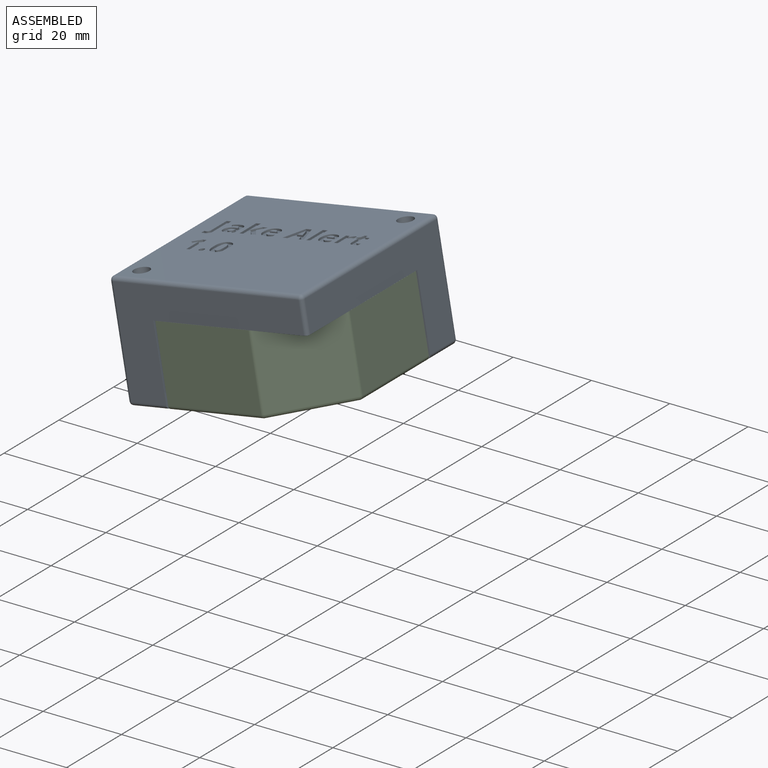
[diagram: assembled view]
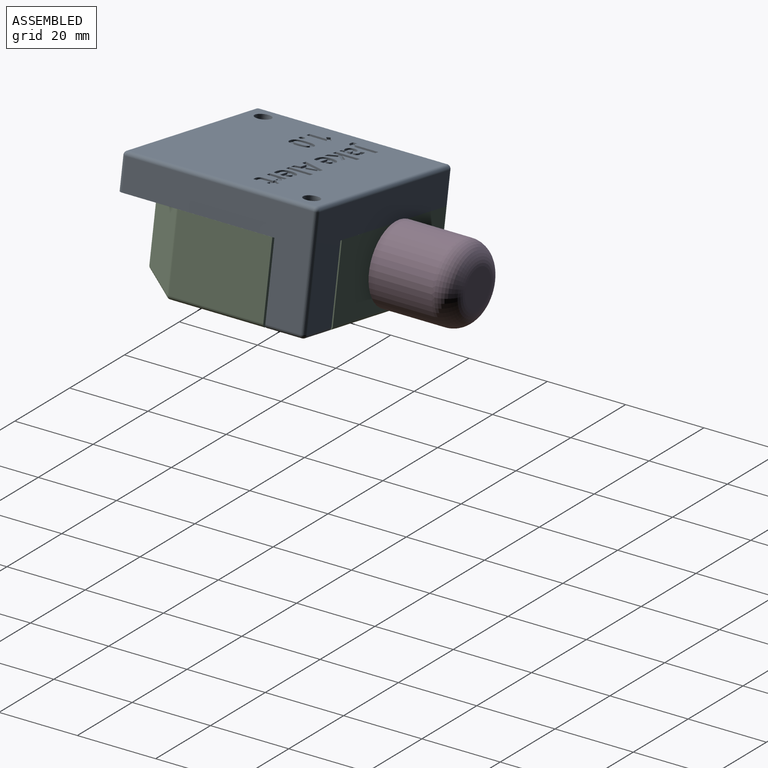
[diagram: assembled view, second angle]
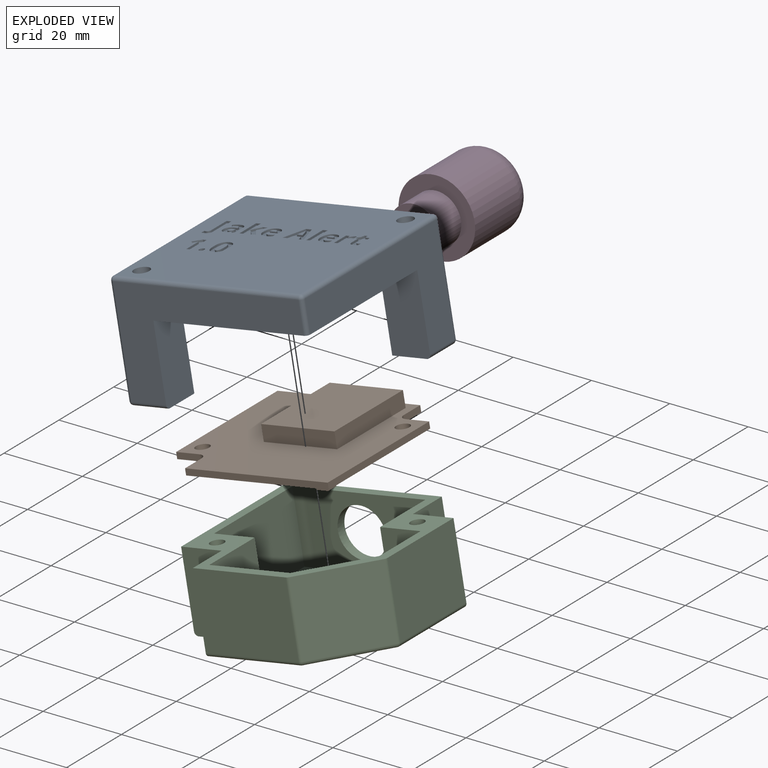
[diagram: exploded view]
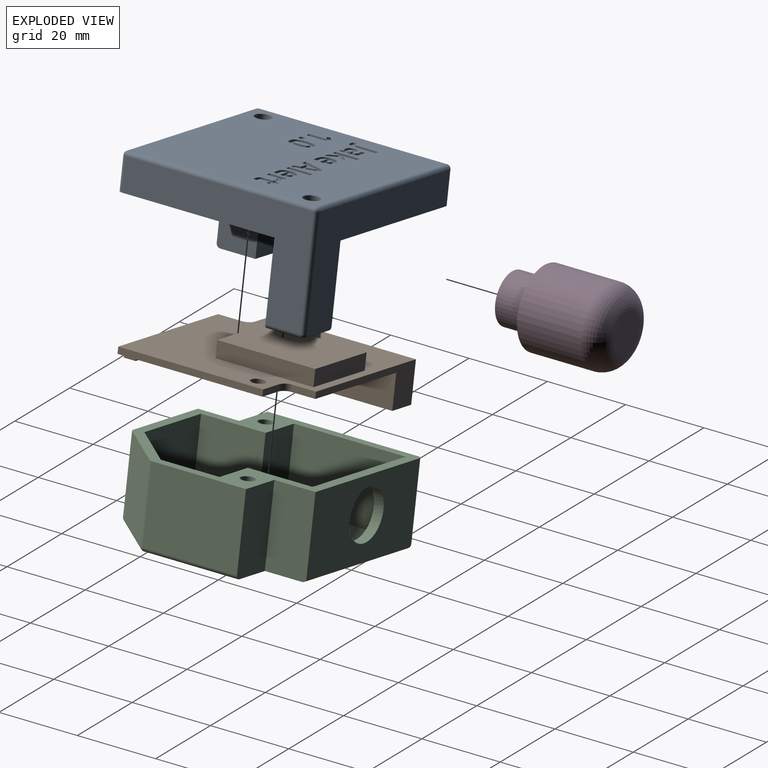
[diagram: exploded view, second angle]
ASSEMBLY  parts=4 mates=4
PART A: 239 faces, bbox 50x50x29 mm
  f0: plane 37.5x2mm, normal (-1,0,0), area 75mm2, adj f1,f196,f212,f217
  f1: plane 40x40mm, normal (0,0,-1), area 193.5mm2, adj f0,f4,f7,f196,f213,f217,f226
  f2: plane 37.5x2mm, normal (1,0,0), area 75mm2, adj f197,f198,f212,f214
  f3: plane 48x48mm, normal (0,0,1), area 2147.6mm2, adj f8,f9,f10,f11,f12,f13,f14,f15
  f4: plane 48x27mm, normal (1,0,0), area 555mm2, adj f1,f217,f226,f232,f235,f238
  f5: plane 48x27mm, normal (0,1,0), area 555mm2, adj f198,f216,f229,f233,f235,f236
  f6: plane 48x27mm, normal (-1,0,0), area 555mm2, adj f198,f214,f222,f224,f228,f229
  f7: plane 48x27mm, normal (0,-1,0), area 555mm2, adj f1,f213,f221,f224,f226,f227
  f8: extruded ~1.36x0.53mm, area 0.8mm2, adj f3,f9,f17,f18
  f9: extruded ~1.53x0.5mm, area 0.8mm2, adj f3,f8,f10,f18
  f10: plane 5.36x0.5mm, normal (-1,0,0), area 2.7mm2, adj f3,f9,f11,f18
  f11: plane 1.21x0.5mm, normal (0,-1,0), area 0.6mm2, adj f3,f10,f12,f18
  f12: plane 5.37x0.5mm, normal (1,0,0), area 2.7mm2, adj f3,f11,f13,f18
  f13: extruded ~0.78x0.5mm, area 0.4mm2, adj f3,f12,f14,f18
  f14: extruded ~0.57x0.5mm, area 0.3mm2, adj f3,f13,f15,f18
  f15: extruded ~0.57x0.5mm, area 0.3mm2, adj f3,f14,f16,f18
  f16: plane 1.01x0.5mm, normal (1,0,0), area 0.5mm2, adj f3,f15,f17,f18
  f17: extruded ~0.72x0.5mm, area 0.4mm2, adj f3,f8,f16,f18
  f18: plane 7.41x2.53mm, normal (0,0,1), area 9.8mm2, adj f8,f9,f10,f11,f12,f13,f14,f15
  f19: extruded ~2.2x0.51mm, area 1.1mm2, adj f3,f20,f34,f35
  f20: extruded ~1.5x0.75mm, area 0.9mm2, adj f3,f19,f21,f35
  f21: extruded ~1.51x0.72mm, area 0.9mm2, adj f3,f20,f22,f35
  f22: extruded ~2.24x0.5mm, area 1.2mm2, adj f3,f21,f23,f35
  f23: extruded ~2.2x0.5mm, area 1.1mm2, adj f3,f22,f24,f35
  f24: extruded ~1.49x0.74mm, area 0.9mm2, adj f3,f23,f25,f35
  f25: extruded ~1.51x0.72mm, area 0.9mm2, adj f3,f24,f34,f35
  f26: extruded ~1.51x0.5mm, area 0.8mm2, adj f27,f33,f35,f36
  f27: extruded ~0.61x0.5mm, area 0.4mm2, adj f26,f28,f35,f36
  f28: extruded ~0.61x0.5mm, area 0.4mm2, adj f27,f29,f35,f36
  f29: extruded ~1.51x0.5mm, area 0.8mm2, adj f28,f30,f35,f36
  f30: extruded ~1.5x0.5mm, area 0.8mm2, adj f29,f31,f35,f36
  f31: extruded ~0.61x0.5mm, area 0.4mm2, adj f30,f32,f35,f36
  f32: extruded ~0.61x0.5mm, area 0.4mm2, adj f31,f33,f35,f36
  f33: extruded ~1.51x0.5mm, area 0.8mm2, adj f26,f32,f35,f36
  f34: extruded ~2.22x0.5mm, area 1.2mm2, adj f3,f19,f25,f35
  f35: plane 5.9x4mm, normal (0,0,1), area 14.4mm2, adj f19,f20,f21,f22,f23,f24,f25,f26
  f36: plane 3.94x1.59mm, normal (0,0,1), area 5.3mm2, adj f26,f27,f28,f29,f30,f31,f32,f33
  f37: extruded ~0.6x0.5mm, area 0.3mm2, adj f38,f56,f57,f194
  f38: extruded ~0.68x0.5mm, area 0.4mm2, adj f37,f39,f57,f194
  f39: plane 1.68x0.5mm, normal (0,-1,0), area 0.8mm2, adj f38,f40,f57,f194
  f40: extruded ~0.68x0.5mm, area 0.4mm2, adj f39,f56,f57,f194
  f41: extruded ~0.87x0.5mm, area 0.4mm2, adj f3,f42,f55,f57
  f42: extruded ~0.67x0.5mm, area 0.4mm2, adj f3,f41,f43,f57
  f43: plane 0.93x0.5mm, normal (-1,0,0), area 0.5mm2, adj f3,f42,f44,f57
  f44: extruded ~0.74x0.5mm, area 0.4mm2, adj f3,f43,f45,f57
  f45: extruded ~0.75x0.5mm, area 0.4mm2, adj f3,f44,f46,f57
  f46: extruded ~0.79x0.5mm, area 0.4mm2, adj f3,f45,f47,f57
  f47: extruded ~0.79x0.5mm, area 0.4mm2, adj f3,f46,f48,f57
  f48: plane 2.82x0.5mm, normal (0,1,0), area 1.4mm2, adj f3,f47,f49,f57
  f49: plane 0.58x0.5mm, normal (-1,0,0), area 0.3mm2, adj f3,f48,f50,f57
  f50: extruded ~1.46x0.52mm, area 0.8mm2, adj f3,f49,f51,f57
  f51: extruded ~1.44x0.53mm, area 0.8mm2, adj f3,f50,f52,f57
  f52: extruded ~1.52x0.6mm, area 0.8mm2, adj f3,f51,f53,f57
  f53: extruded ~1.7x0.55mm, area 0.9mm2, adj f3,f52,f54,f57
  f54: extruded ~1.65x0.6mm, area 0.9mm2, adj f3,f53,f55,f57
  f55: extruded ~1.65x0.58mm, area 0.9mm2, adj f3,f41,f54,f57
  f56: extruded ~0.6x0.5mm, area 0.3mm2, adj f37,f40,f57,f194
  f57: plane 4.54x4.03mm, normal (0,0,1), area 11.6mm2, adj f37,f38,f39,f40,f41,f42,f43,f44
  f58: plane 1.31x0.5mm, normal (0,1,0), area 0.7mm2, adj f3,f59,f69,f70
  f59: plane 5.75x2.03mm, normal (-0.94,-0.33,0), area 3mm2, adj f3,f58,f60,f70
  f60: plane 1.48x0.5mm, normal (0,-1,0), area 0.7mm2, adj f3,f59,f61,f70
  f61: plane 5.75x2.02mm, normal (0.94,-0.33,0), area 3mm2, adj f3,f60,f62,f70
  f62: plane 1.31x0.5mm, normal (0,1,0), area 0.7mm2, adj f3,f61,f63,f70
  f63: plane 1.36x0.5mm, normal (-0.96,0.29,0), area 0.7mm2, adj f3,f62,f64,f70
  f64: plane 2.09x0.5mm, normal (0,1,0), area 1mm2, adj f3,f63,f69,f70
  f65: plane 1.49x0.5mm, normal (0,-1,0), area 0.7mm2, adj f66,f68,f70,f71
  f66: extruded ~2.48x0.74mm, area 1.3mm2, adj f65,f67,f70,f71
  f67: extruded ~0.5x0.38mm, area 0.2mm2, adj f66,f68,f70,f71
  f68: extruded ~2.1x0.65mm, area 1.1mm2, adj f65,f67,f70,f71
  f69: plane 1.36x0.5mm, normal (0.96,0.29,0), area 0.7mm2, adj f3,f58,f64,f70
  f70: plane 5.75x5.53mm, normal (0,0,1), area 15mm2, adj f58,f59,f60,f61,f62,f63,f64,f65
  f71: plane 2.48x1.49mm, normal (0,0,1), area 1.8mm2, adj f65,f66,f67,f68
  f72: plane 0.5x0.02mm, normal (0,-1,0), area 0mm2, adj f3,f73,f86,f87
  f73: plane 1x0.5mm, normal (-1,0.06,0), area 0.5mm2, adj f3,f72,f74,f87
  f74: plane 2.72x0.5mm, normal (-1,0,0), area 1.4mm2, adj f3,f73,f75,f87
  f75: plane 1.19x0.5mm, normal (0,-1,0), area 0.6mm2, adj f3,f74,f76,f87
  f76: plane 6.09x0.5mm, normal (1,0,0), area 3mm2, adj f3,f75,f77,f87
  f77: plane 1.19x0.5mm, normal (0,1,0), area 0.6mm2, adj f3,f76,f78,f87
  f78: plane 1.36x0.5mm, normal (-1,0,0), area 0.7mm2, adj f3,f77,f79,f87
  f79: plane 0.51x0.5mm, normal (-0.62,0.78,0), area 0.3mm2, adj f3,f78,f80,f87
  f80: plane 1.77x1.26mm, normal (0.82,0.58,0), area 1.1mm2, adj f3,f79,f81,f87
  f81: plane 1.38x0.5mm, normal (0,1,0), area 0.7mm2, adj f3,f80,f82,f87
  f82: plane 2.48x1.85mm, normal (-0.8,-0.6,0), area 1.5mm2, adj f3,f81,f83,f87
  f83: plane 1.9x1.74mm, normal (-0.74,0.68,0), area 1.3mm2, adj f3,f82,f84,f87
  f84: plane 1.35x0.5mm, normal (0,-1,0), area 0.7mm2, adj f3,f83,f85,f87
  f85: plane 1.33x1.23mm, normal (0.74,-0.68,0), area 0.9mm2, adj f3,f84,f86,f87
  f86: plane 0.67x0.52mm, normal (0.79,-0.62,0), area 0.4mm2, adj f3,f72,f85,f87
  f87: plane 6.09x4.35mm, normal (0,0,1), area 13.4mm2, adj f72,f73,f74,f75,f76,f77,f78,f79
  f88: plane 6.09x0.5mm, normal (-1,0,0), area 3mm2, adj f3,f89,f91,f92
  f89: plane 1.19x0.5mm, normal (0,-1,0), area 0.6mm2, adj f3,f88,f90,f92
  f90: plane 6.09x0.5mm, normal (1,0,0), area 3mm2, adj f3,f89,f91,f92
  f91: plane 1.19x0.5mm, normal (0,1,0), area 0.6mm2, adj f3,f88,f90,f92
  f92: plane 6.09x1.19mm, normal (0,0,1), area 7.3mm2, adj f88,f89,f90,f91
  f93: extruded ~0.75x0.5mm, area 0.4mm2, adj f3,f94,f105,f106
  f94: extruded ~0.59x0.55mm, area 0.4mm2, adj f3,f93,f95,f106
  f95: plane 0.5x0.06mm, normal (0,-1,0), area 0mm2, adj f3,f94,f96,f106
  f96: plane 0.74x0.5mm, normal (-0.97,-0.23,0), area 0.4mm2, adj f3,f95,f97,f106
  f97: plane 0.91x0.5mm, normal (0,-1,0), area 0.5mm2, adj f3,f96,f98,f106
  f98: plane 4.38x0.5mm, normal (1,0,0), area 2.2mm2, adj f3,f97,f99,f106
  f99: plane 1.19x0.5mm, normal (0,1,0), area 0.6mm2, adj f3,f98,f100,f106
  f100: plane 2.23x0.5mm, normal (-1,0,0), area 1.1mm2, adj f3,f99,f101,f106
  f101: extruded ~0.82x0.5mm, area 0.5mm2, adj f3,f100,f102,f106
  f102: extruded ~0.89x0.5mm, area 0.5mm2, adj f3,f101,f103,f106
  f103: extruded ~0.5x0.35mm, area 0.2mm2, adj f3,f102,f104,f106
  f104: plane 1.12x0.5mm, normal (-1,0.08,0), area 0.6mm2, adj f3,f103,f105,f106
  f105: extruded ~0.5x0.4mm, area 0.2mm2, adj f3,f93,f104,f106
  f106: plane 4.46x2.85mm, normal (0,0,1), area 6.9mm2, adj f93,f94,f95,f96,f97,f98,f99,f100
  f107: extruded ~0.5x0.38mm, area 0.2mm2, adj f3,f108,f124,f125
  f108: extruded ~0.5x0.38mm, area 0.2mm2, adj f3,f107,f109,f125
  f109: plane 2.11x0.5mm, normal (-1,0,0), area 1.1mm2, adj f3,f108,f110,f125
  f110: plane 1.23x0.5mm, normal (0,1,0), area 0.6mm2, adj f3,f109,f111,f125
  f111: plane 0.9x0.5mm, normal (-1,0,0), area 0.4mm2, adj f3,f110,f112,f125
  f112: plane 1.23x0.5mm, normal (0,-1,0), area 0.6mm2, adj f3,f111,f113,f125
  f113: plane 0.93x0.5mm, normal (-1,0,0), area 0.5mm2, adj f3,f112,f114,f125
  f114: plane 0.76x0.5mm, normal (0,-1,0), area 0.4mm2, adj f3,f113,f115,f125
  f115: plane 0.93x0.5mm, normal (0.94,-0.35,0), area 0.5mm2, adj f3,f114,f116,f125
  f116: plane 0.66x0.5mm, normal (0.52,-0.85,0), area 0.4mm2, adj f3,f115,f117,f125
  f117: plane 0.51x0.5mm, normal (1,0,0), area 0.3mm2, adj f3,f116,f118,f125
  f118: plane 0.57x0.5mm, normal (0,1,0), area 0.3mm2, adj f3,f117,f119,f125
  f119: plane 2.11x0.5mm, normal (1,0,0), area 1.1mm2, adj f3,f118,f120,f125
  f120: extruded ~1.09x0.5mm, area 0.6mm2, adj f3,f119,f121,f125
  f121: extruded ~1.04x0.5mm, area 0.6mm2, adj f3,f120,f122,f125
  f122: extruded ~1.1x0.5mm, area 0.6mm2, adj f3,f121,f123,f125
  f123: plane 0.89x0.5mm, normal (-1,0,0), area 0.4mm2, adj f3,f122,f124,f125
  f124: extruded ~0.75x0.5mm, area 0.4mm2, adj f3,f107,f123,f125
  f125: plane 5.39x3.04mm, normal (0,0,1), area 8.6mm2, adj f107,f108,f109,f110,f111,f112,f113,f114
  f126: plane 5.73x0.5mm, normal (-1,0,0), area 2.9mm2, adj f3,f127,f135,f136
  f127: plane 1x0.5mm, normal (0,-1,0), area 0.5mm2, adj f3,f126,f128,f136
  f128: plane 1.85x1.47mm, normal (0.62,-0.78,0), area 1.2mm2, adj f3,f127,f129,f136
  f129: plane 0.73x0.58mm, normal (0.78,0.63,0), area 0.5mm2, adj f3,f128,f130,f136
  f130: plane 0.66x0.53mm, normal (-0.63,0.78,0), area 0.4mm2, adj f3,f129,f131,f136
  f131: extruded ~0.5x0.42mm, area 0.3mm2, adj f3,f130,f132,f136
  f132: plane 0.6x0.5mm, normal (1,-0.03,0), area 0.3mm2, adj f3,f131,f133,f136
  f133: plane 0.54x0.5mm, normal (1,-0.02,0), area 0.3mm2, adj f3,f132,f134,f136
  f134: plane 3.31x0.5mm, normal (1,0,0), area 1.7mm2, adj f3,f133,f135,f136
  f135: plane 1.21x0.5mm, normal (0,1,0), area 0.6mm2, adj f3,f126,f134,f136
  f136: plane 5.73x2.84mm, normal (0,0,1), area 8.5mm2, adj f126,f127,f128,f129,f130,f131,f132,f133
  f137: extruded ~0.5x0.49mm, area 0.3mm2, adj f3,f138,f144,f145
  f138: extruded ~0.51x0.5mm, area 0.3mm2, adj f3,f137,f139,f145
  f139: extruded ~0.5x0.5mm, area 0.3mm2, adj f3,f138,f140,f145
  f140: extruded ~0.5x0.49mm, area 0.3mm2, adj f3,f139,f141,f145
  f141: extruded ~0.5x0.49mm, area 0.3mm2, adj f3,f140,f142,f145
  f142: extruded ~0.5x0.5mm, area 0.3mm2, adj f3,f141,f143,f145
  f143: extruded ~0.51x0.5mm, area 0.3mm2, adj f3,f142,f144,f145
  f144: extruded ~0.5x0.5mm, area 0.3mm2, adj f3,f137,f143,f145
  f145: plane 1.37x1.33mm, normal (0,0,1), area 1.5mm2, adj f137,f138,f139,f140,f141,f142,f143,f144
  f146: plane 0.83x0.5mm, normal (0,1,0), area 0.4mm2, adj f3,f147,f170,f171
  f147: plane 2.92x0.5mm, normal (-1,0,0), area 1.5mm2, adj f3,f146,f148,f171
  f148: extruded ~1.17x0.5mm, area 0.7mm2, adj f3,f147,f149,f171
  f149: extruded ~1.35x0.5mm, area 0.7mm2, adj f3,f148,f150,f171
  f150: extruded ~1.68x0.5mm, area 0.9mm2, adj f3,f149,f151,f171
  f151: plane 0.81x0.5mm, normal (0.9,0.44,0), area 0.4mm2, adj f3,f150,f152,f171
  f152: extruded ~1.23x0.5mm, area 0.6mm2, adj f3,f151,f153,f171
  f153: extruded ~0.68x0.67mm, area 0.5mm2, adj f3,f152,f154,f171
  f154: plane 0.5x0.19mm, normal (1,0,0), area 0.1mm2, adj f3,f153,f155,f171
  f155: plane 0.76x0.5mm, normal (0.03,-1,0), area 0.4mm2, adj f3,f154,f156,f171
  f156: extruded ~1.47x0.5mm, area 0.8mm2, adj f3,f155,f157,f171
  f157: extruded ~1.03x0.5mm, area 0.6mm2, adj f3,f156,f158,f171
  f158: extruded ~1.03x0.5mm, area 0.6mm2, adj f3,f157,f159,f171
  f159: extruded ~0.99x0.5mm, area 0.5mm2, adj f3,f158,f160,f171
  f160: extruded ~0.83x0.5mm, area 0.4mm2, adj f3,f159,f161,f171
  f161: extruded ~0.62x0.53mm, area 0.4mm2, adj f3,f160,f162,f171
  f162: plane 0.5x0.03mm, normal (0,1,0), area 0mm2, adj f3,f161,f170,f171
  f163: plane 0.5x0.36mm, normal (1,0,0), area 0.2mm2, adj f164,f169,f171,f172
  f164: extruded ~0.63x0.5mm, area 0.4mm2, adj f163,f165,f171,f172
  f165: extruded ~0.67x0.5mm, area 0.4mm2, adj f164,f166,f171,f172
  f166: extruded ~0.58x0.51mm, area 0.4mm2, adj f165,f167,f171,f172
  f167: extruded ~0.52x0.5mm, area 0.3mm2, adj f166,f168,f171,f172
  f168: extruded ~0.78x0.5mm, area 0.4mm2, adj f167,f169,f171,f172
  f169: plane 0.5x0.46mm, normal (-0.04,1,0), area 0.2mm2, adj f163,f168,f171,f172
  f170: plane 0.6x0.5mm, normal (0.93,0.36,0), area 0.3mm2, adj f3,f146,f162,f171
  f171: plane 4.55x3.9mm, normal (0,0,1), area 11.7mm2, adj f146,f147,f148,f149,f150,f151,f152,f153
  f172: plane 1.49x1.23mm, normal (0,0,1), area 1.5mm2, adj f163,f164,f165,f166,f167,f168,f169
  f173: extruded ~0.6x0.5mm, area 0.3mm2, adj f174,f192,f193,f195
  f174: extruded ~0.68x0.5mm, area 0.4mm2, adj f173,f175,f193,f195
  f175: plane 1.68x0.5mm, normal (0,-1,0), area 0.8mm2, adj f174,f176,f193,f195
  f176: extruded ~0.68x0.5mm, area 0.4mm2, adj f175,f192,f193,f195
  f177: extruded ~0.87x0.5mm, area 0.4mm2, adj f3,f178,f191,f193
  f178: extruded ~0.67x0.5mm, area 0.4mm2, adj f3,f177,f179,f193
  f179: plane 0.93x0.5mm, normal (-1,0,0), area 0.5mm2, adj f3,f178,f180,f193
  f180: extruded ~0.74x0.5mm, area 0.4mm2, adj f3,f179,f181,f193
  f181: extruded ~0.75x0.5mm, area 0.4mm2, adj f3,f180,f182,f193
  f182: extruded ~0.79x0.5mm, area 0.4mm2, adj f3,f181,f183,f193
  f183: extruded ~0.79x0.5mm, area 0.4mm2, adj f3,f182,f184,f193
  f184: plane 2.82x0.5mm, normal (0,1,0), area 1.4mm2, adj f3,f183,f185,f193
  f185: plane 0.58x0.5mm, normal (-1,0,0), area 0.3mm2, adj f3,f184,f186,f193
  f186: extruded ~1.46x0.52mm, area 0.8mm2, adj f3,f185,f187,f193
  f187: extruded ~1.44x0.53mm, area 0.8mm2, adj f3,f186,f188,f193
  f188: extruded ~1.52x0.6mm, area 0.8mm2, adj f3,f187,f189,f193
  f189: extruded ~1.7x0.55mm, area 0.9mm2, adj f3,f188,f190,f193
  f190: extruded ~1.65x0.6mm, area 0.9mm2, adj f3,f189,f191,f193
  f191: extruded ~1.65x0.58mm, area 0.9mm2, adj f3,f177,f190,f193
  f192: extruded ~0.6x0.5mm, area 0.3mm2, adj f173,f176,f193,f195
  f193: plane 4.54x4.03mm, normal (0,0,1), area 11.6mm2, adj f173,f174,f175,f176,f177,f178,f179,f180
  f194: plane 1.68x0.92mm, normal (0,0,1), area 1.2mm2, adj f37,f38,f39,f40,f56
  f195: plane 1.68x0.92mm, normal (0,0,1), area 1.2mm2, adj f173,f174,f175,f176,f192
  f196: plane 37.5x2mm, normal (0,1,0), area 75mm2, adj f0,f1,f212,f213
  f197: plane 37.5x2mm, normal (0,-1,0), area 75mm2, adj f2,f198,f212,f216
  f198: plane 40x40mm, normal (0,0,-1), area 193.5mm2, adj f2,f5,f6,f197,f214,f216,f229
  f199: plane 1x1mm, normal (0,0,-1), area 0.8mm2, adj f202
  f200: plane 1x1mm, normal (0,0,-1), area 0.8mm2, adj f203
  f201: plane 42x42mm, normal (0,0,-1), area 1524mm2, adj f204,f205,f206,f207,f208,f209,f210,f211
  f202: cylinder r=0.5mm len=5mm, axis (0,0,1), area 15.7mm2, adj f199,f212
  f203: cylinder r=0.5mm len=5mm, axis (0,0,1), area 15.7mm2, adj f200,f212
  f204: plane 16x5mm, normal (1,0,0), area 80mm2, adj f201,f205,f211,f212
  f205: plane 7.5x5mm, normal (0,1,0), area 37.5mm2, adj f201,f204,f206,f212
  f206: plane 26x5mm, normal (1,0,0), area 130mm2, adj f201,f205,f207,f212
  f207: plane 34.5x5mm, normal (0,-1,0), area 172.5mm2, adj f201,f206,f208,f212
  f208: plane 16x5mm, normal (-1,0,0), area 80mm2, adj f201,f207,f209,f212
  f209: plane 7.5x5mm, normal (0,-1,0), area 37.5mm2, adj f201,f208,f210,f212
  f210: plane 26x5mm, normal (-1,0,0), area 130mm2, adj f201,f209,f211,f212
  f211: plane 34.5x5mm, normal (0,1,0), area 172.5mm2, adj f201,f204,f210,f212
  f212: plane 45x45mm, normal (0,0,-1), area 386.9mm2, adj f0,f2,f196,f197,f202,f203,f204,f205
  f213: plane 22x10mm, normal (1,0,0), area 214.8mm2, adj f1,f7,f196,f212,f214,f215,f221
  f214: plane 22x10mm, normal (0,1,0), area 214.8mm2, adj f2,f6,f198,f212,f213,f215,f222
  f215: plane 9x9mm, normal (0,0,-1), area 68.4mm2, adj f213,f214,f219,f221,f222
  f216: plane 22x10mm, normal (-1,0,0), area 214.8mm2, adj f5,f197,f198,f212,f217,f218,f236
  f217: plane 22x10mm, normal (0,-1,0), area 214.8mm2, adj f0,f1,f4,f212,f216,f218,f238
  f218: plane 9x9mm, normal (0,0,-1), area 68.4mm2, adj f216,f217,f220,f236,f238
  f219: cylinder r=2mm len=29mm, axis (0,0,1), area 364.4mm2, adj f3,f215
  f220: cylinder r=2mm len=29mm, axis (0,0,1), area 364.4mm2, adj f3,f218
  f221: cylinder r=1mm len=9mm, axis (-1,0,0), area 14.1mm2, adj f7,f213,f215,f223
  f222: cylinder r=1mm len=9mm, axis (0,1,0), area 14.1mm2, adj f6,f214,f215,f223
  f223: sphere r=1mm, area 1.6mm2, adj f221,f222,f224
  f224: cylinder r=1mm len=27mm, axis (0,0,-1), area 42.4mm2, adj f6,f7,f223,f225
  f225: sphere r=1mm, area 1.6mm2, adj f224,f227,f228
  f226: cylinder r=1mm len=8mm, axis (0,0,-1), area 12.6mm2, adj f1,f4,f7,f230
  f227: cylinder r=1mm len=48mm, axis (-1,0,0), area 75.4mm2, adj f3,f7,f225,f230
  f228: cylinder r=1mm len=48mm, axis (0,1,0), area 75.4mm2, adj f3,f6,f225,f231
  f229: cylinder r=1mm len=8mm, axis (0,0,1), area 12.6mm2, adj f5,f6,f198,f231
  f230: sphere r=1mm, area 1.6mm2, adj f226,f227,f232
  f231: sphere r=1mm, area 1.6mm2, adj f228,f229,f233
  f232: cylinder r=1mm len=48mm, axis (0,-1,0), area 75.4mm2, adj f3,f4,f230,f234
  f233: cylinder r=1mm len=48mm, axis (1,0,0), area 75.4mm2, adj f3,f5,f231,f234
  f234: sphere r=1mm, area 1.6mm2, adj f232,f233,f235
  f235: cylinder r=1mm len=27mm, axis (0,0,1), area 42.4mm2, adj f4,f5,f234,f237
  f236: cylinder r=1mm len=9mm, axis (1,0,0), area 14.1mm2, adj f5,f216,f218,f237
  f237: sphere r=1mm, area 1.6mm2, adj f235,f236,f238
  f238: cylinder r=1mm len=9mm, axis (0,-1,0), area 14.1mm2, adj f4,f217,f218,f237
PART B: 29 faces, bbox 45x45x14 mm
  f0: plane 45x45mm, normal (0,0,1), area 1715mm2, adj f2,f3,f4,f5,f6,f7,f8,f9
  f1: plane 45x45mm, normal (0,0,-1), area 1404.5mm2, adj f2,f3,f4,f5,f6,f7,f8,f9
  f2: plane 6x1.6mm, normal (0,-1,0), area 9.6mm2, adj f0,f1,f3,f11
  f3: plane 37x10mm, normal (1,0,0), area 244.8mm2, adj f0,f1,f2,f4,f18,f19
  f4: plane 37x10mm, normal (0,1,0), area 118mm2, adj f0,f1,f3,f5,f17,f19
  f5: plane 6x1.6mm, normal (-1,0,0), area 9.6mm2, adj f0,f1,f4,f6
  f6: cylinder r=2mm len=2mm, axis (0,0,-1), area 5mm2, adj f0,f1,f5,f7
  f7: plane 6x1.6mm, normal (0,1,0), area 9.6mm2, adj f0,f1,f6,f8
  f8: plane 37x1.6mm, normal (-1,0,0), area 59.2mm2, adj f0,f1,f7,f9
  f9: plane 37x1.6mm, normal (0,-1,0), area 59.2mm2, adj f0,f1,f8,f10
  f10: plane 6x1.6mm, normal (1,0,0), area 9.6mm2, adj f0,f1,f9,f11
  f11: cylinder r=2mm len=2mm, axis (0,0,-1), area 5mm2, adj f0,f1,f2,f10
  f12: plane 19x4mm, normal (0,-1,0), area 76mm2, adj f1,f13,f15,f16
  f13: plane 25x4mm, normal (1,0,0), area 100mm2, adj f1,f12,f14,f16
  f14: plane 19x4mm, normal (0,1,0), area 76mm2, adj f1,f13,f15,f16
  f15: plane 25x4mm, normal (-1,0,0), area 100mm2, adj f1,f12,f14,f16
  f16: plane 25x19mm, normal (0,0,-1), area 475mm2, adj f12,f13,f14,f15
  f17: plane 22.1x8.4mm, normal (-1,0,0), area 185.6mm2, adj f0,f4,f18,f19
  f18: plane 8.4x7mm, normal (0,-1,0), area 58.8mm2, adj f0,f3,f17,f19
  f19: plane 22.1x7mm, normal (0,0,1), area 154.7mm2, adj f3,f4,f17,f18
  f20: plane 3x0.75mm, normal (-1,0,0), area 2.2mm2, adj f0,f21,f23,f24
  f21: plane 3x0.75mm, normal (0,-1,0), area 2.2mm2, adj f0,f20,f22,f24
  f22: plane 3x0.75mm, normal (1,0,0), area 2.2mm2, adj f0,f21,f23,f24
  f23: plane 3x0.75mm, normal (0,1,0), area 2.2mm2, adj f0,f20,f22,f24
  f24: plane 3x3mm, normal (0,0,1), area 9mm2, adj f20,f21,f22,f23
  f25: cylinder r=0.5mm len=1mm, axis (0,0,-1), area 2.4mm2, adj f0,f26
  f26: plane 1x1mm, normal (0,0,1), area 0.8mm2, adj f25
  f27: cylinder r=1.75mm len=3.5mm, axis (0,0,-1), area 17.6mm2, adj f0,f1
  f28: cylinder r=1.75mm len=3.5mm, axis (0,0,-1), area 17.6mm2, adj f0,f1
PART C: 39 faces, bbox 50x50x20 mm
  f0: plane 24.1x19mm, normal (0,-1,0), area 457.9mm2, adj f8,f19,f26,f28
  f1: plane 19x14.41mm, normal (0.71,-0.71,0), area 387.3mm2, adj f19,f22,f25,f28
  f2: plane 24.1x19mm, normal (1,0,0), area 457.9mm2, adj f3,f19,f22,f23
  f3: plane 20x10.5mm, normal (0,1,0), area 209.9mm2, adj f2,f4,f9,f19,f23
  f4: plane 20x10.5mm, normal (1,0,0), area 209.9mm2, adj f3,f5,f9,f19,f30
  f5: plane 38.52x19mm, normal (0,1,0), area 609.1mm2, adj f4,f19,f21,f30,f32
  f6: plane 38.52x19mm, normal (-1,0,0), area 731.8mm2, adj f7,f19,f29,f32
  f7: plane 20x10.5mm, normal (0,-1,0), area 209.9mm2, adj f6,f8,f9,f19,f29
  f8: plane 20x10.5mm, normal (-1,0,0), area 209.9mm2, adj f0,f7,f9,f19,f26
  f9: plane 48.02x48.02mm, normal (0,0,-1), area 1964.9mm2, adj f3,f4,f7,f8,f23,f25,f26,f29
  f10: plane 20.98x18mm, normal (0,1,0), area 377.7mm2, adj f11,f18,f19,f20
  f11: plane 18x16.5mm, normal (1,0,0), area 297.1mm2, adj f10,f12,f19,f20
  f12: plane 18x10.5mm, normal (0,1,0), area 189.1mm2, adj f11,f13,f19,f20
  f13: plane 28.52x18mm, normal (1,0,0), area 513.3mm2, adj f12,f14,f19,f20
  f14: plane 34.52x18mm, normal (0,-1,0), area 498.6mm2, adj f13,f15,f19,f20,f21
  f15: plane 18x16.5mm, normal (-1,0,0), area 297.1mm2, adj f14,f16,f19,f20
  f16: plane 18x10.5mm, normal (0,-1,0), area 189.1mm2, adj f15,f17,f19,f20
  f17: plane 18x14.98mm, normal (-1,0,0), area 269.7mm2, adj f16,f18,f19,f20
  f18: plane 18x13.54mm, normal (-0.71,0.71,0), area 344.6mm2, adj f10,f17,f19,f20
  f19: plane 50.02x50.02mm, normal (0,0,1), area 560.9mm2, adj f0,f1,f2,f3,f4,f5,f6,f7
  f20: plane 45.02x45.02mm, normal (0,0,1), area 1588.5mm2, adj f10,f11,f12,f13,f14,f15,f16,f17
  f21: cylinder r=6.25mm len=12.5mm, axis (0,1,0), area 98.2mm2, adj f5,f14
  f22: cylinder r=1mm len=19mm, axis (0,0,1), area 14.9mm2, adj f1,f2,f19,f24
  f23: cylinder r=1mm len=24.1mm, axis (0,1,0), area 37.9mm2, adj f2,f3,f9,f24
  f24: sphere r=1mm, area 0.8mm2, adj f22,f23,f25
  f25: cylinder r=1mm len=15.12mm, axis (0.71,0.71,0), area 32mm2, adj f1,f9,f24,f27
  f26: cylinder r=1mm len=24.1mm, axis (1,0,0), area 37.9mm2, adj f0,f8,f9,f27
  f27: sphere r=1mm, area 0.8mm2, adj f25,f26,f28
  f28: cylinder r=1mm len=19mm, axis (0,0,1), area 14.9mm2, adj f0,f1,f19,f27
  f29: cylinder r=1mm len=38.52mm, axis (0,-1,0), area 60.5mm2, adj f6,f7,f9,f31
  f30: cylinder r=1mm len=38.52mm, axis (-1,0,0), area 60.5mm2, adj f4,f5,f9,f31
  f31: sphere r=1mm, area 1.6mm2, adj f29,f30,f32
  f32: cylinder r=1mm len=19mm, axis (0,0,-1), area 29.8mm2, adj f5,f6,f19,f31
  f33: cylinder r=1.75mm len=3.5mm, axis (0,0,1), area 33mm2, adj f19,f37
  f34: cylinder r=1.75mm len=3.5mm, axis (0,0,1), area 33mm2, adj f19,f35
  f35: plane 6x6mm, normal (0,0,-1), area 18.7mm2, adj f34,f36
  f36: cylinder r=3mm len=17mm, axis (0,0,-1), area 320.4mm2, adj f9,f35
  f37: plane 6x6mm, normal (0,0,-1), area 18.7mm2, adj f33,f38
  f38: cylinder r=3mm len=17mm, axis (0,0,-1), area 320.4mm2, adj f9,f37
PART D: 6 faces, bbox 19.6x19.6x29.2 mm
  f0: cylinder r=6.25mm len=12.5mm, axis (0,0,-1), area 318.1mm2, adj f1,f4
  f1: plane 12.5x12.5mm, normal (0,0,1), area 122.7mm2, adj f0
  f2: cylinder r=9.8mm len=19.6mm, axis (0,0,1), area 991.4mm2, adj f4,f5
  f3: plane 9.6x9.6mm, normal (0,0,-1), area 72.4mm2, adj f5
  f4: plane 19.6x19.6mm, normal (0,0,1), area 179mm2, adj f0,f2
  f5: torus R=4.8mm, axis (0,0,-1), area 394mm2, adj f2,f3
PLACE A rot(axis=(0,-1,0),10deg) t=(16.52,40.97,7.07)mm
PLACE B rot(axis=(0,1,0),170deg) t=(17.39,40.97,2.15)mm
PLACE C rot(axis=(0,-1,0),10deg) t=(21.22,40.96,-19.52)mm
PLACE D rot(axis=(0.51,-0.61,0.61),125.9deg) t=(13.39,66.6,-9.73)mm
MATE cylindrical D.f0 <-> C.f21  axis (0,-1,0) through (13.39,58.5,-9.73)mm
MATE fastened C.f19 <-> A.f198  axis (-0.17,0,0.98) through (-4.42,63.47,-3.73)mm
MATE parallel B.f1 <-> A.f201  axis (-0.17,0,0.98) through (16.46,38.34,1.98)mm
MATE fastened B.f1 <-> A.f212  axis (-0.17,0,0.98) through (-4.77,63.47,-1.76)mm
